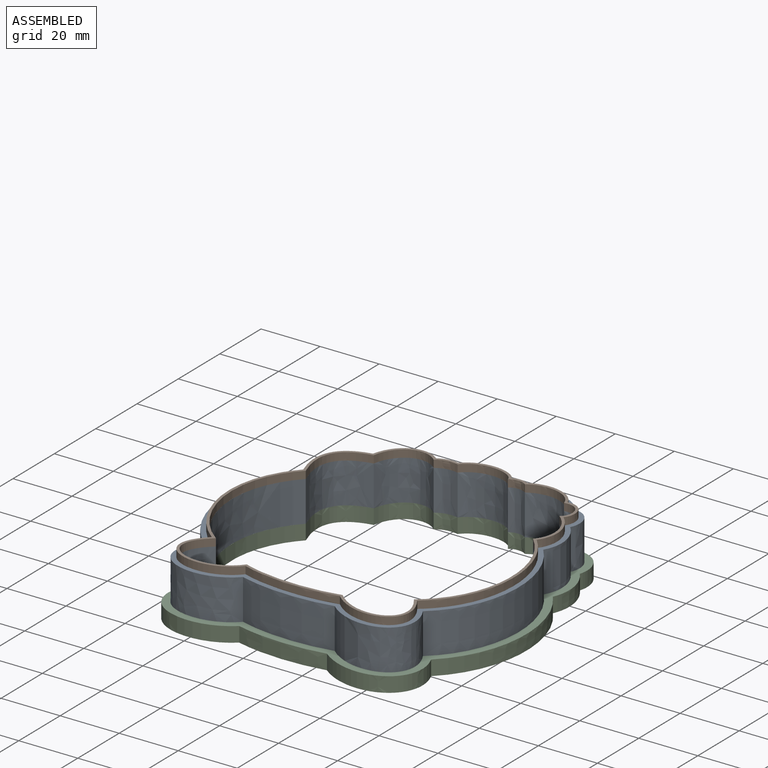
[diagram: assembled view]
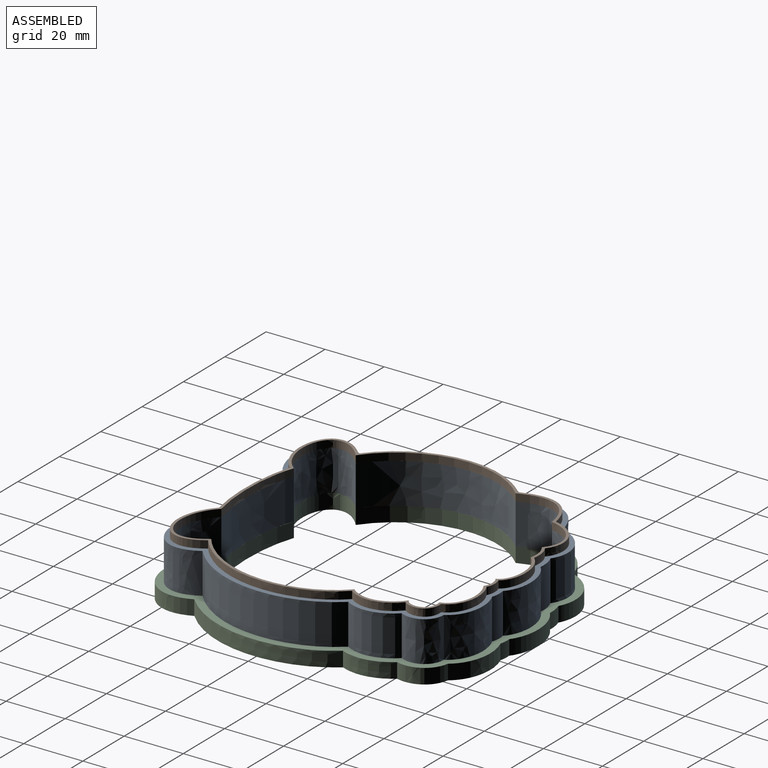
[diagram: assembled view, second angle]
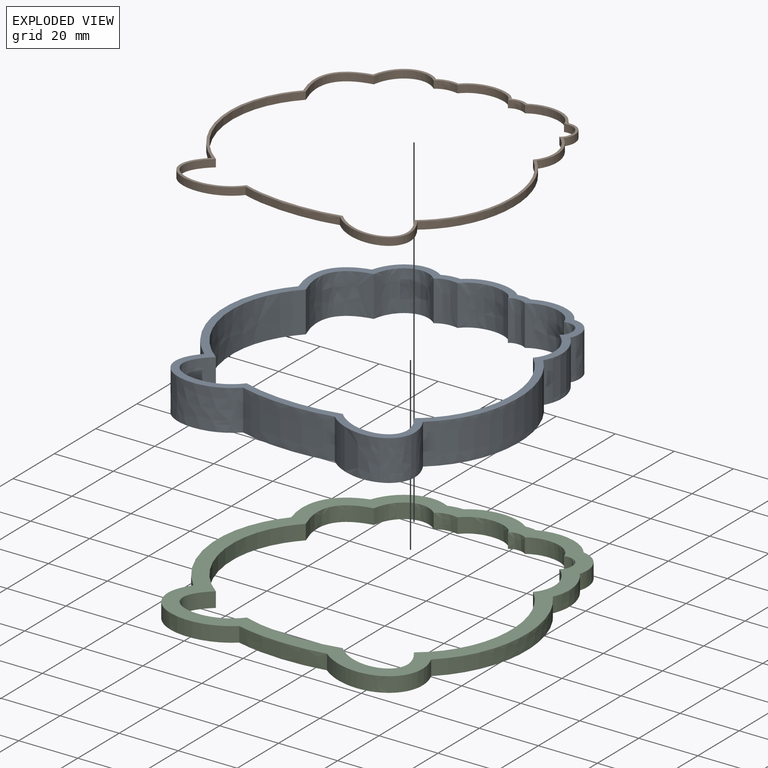
[diagram: exploded view]
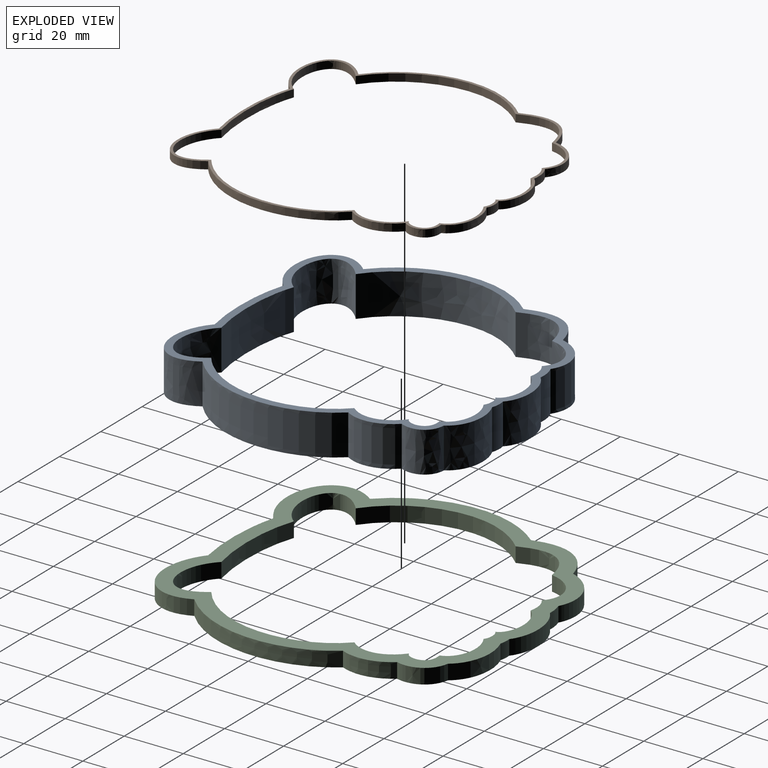
[diagram: exploded view, second angle]
ASSEMBLY  parts=3 mates=2
PART A: 28 faces, bbox 101.1x103.6x13.8 mm
  f0: plane 103.56x101.1mm, normal (0,0,1), area 901.9mm2, adj f2,f3,f4,f5,f6,f7,f8,f9
  f1: plane 103.56x101.1mm, normal (0,0,-1), area 901.9mm2, adj f2,f3,f4,f5,f6,f7,f8,f9
  f2: extruded ~51.39x13.72mm, area 786.8mm2, adj f0,f1,f3,f14
  f3: extruded ~25.49x17.3mm, area 562.3mm2, adj f0,f1,f2,f4
  f4: extruded ~31.78x13.72mm, area 440.3mm2, adj f0,f1,f3,f5
  f5: extruded ~24.18x16.36mm, area 521.4mm2, adj f0,f1,f4,f6
  f6: extruded ~52.26x13.72mm, area 796.4mm2, adj f0,f1,f5,f7
  f7: extruded ~16.46x13.72mm, area 245.2mm2, adj f0,f1,f6,f8
  f8: extruded ~13.72x10.24mm, area 193.6mm2, adj f0,f1,f7,f9
  f9: extruded ~17.56x13.72mm, area 270.4mm2, adj f0,f1,f8,f10
  f10: extruded ~13.72x4.75mm, area 66.3mm2, adj f0,f1,f9,f11
  f11: extruded ~18.93x13.72mm, area 282.6mm2, adj f0,f1,f10,f12
  f12: extruded ~13.72x6.1mm, area 85.8mm2, adj f0,f1,f11,f13
  f13: extruded ~17.56x13.72mm, area 311.8mm2, adj f0,f1,f12,f14
  f14: extruded ~20.68x13.72mm, area 371.5mm2, adj f0,f1,f2,f13
  f15: extruded ~50.63x14.26mm, area 790.9mm2, adj f0,f1,f16,f27
  f16: extruded ~22.15x14.93mm, area 512.8mm2, adj f0,f1,f15,f17
  f17: extruded ~33.36x13.72mm, area 463.4mm2, adj f0,f1,f16,f18
  f18: extruded ~20.87x14.37mm, area 470.6mm2, adj f0,f1,f17,f19
  f19: extruded ~51.48x13.72mm, area 799.7mm2, adj f0,f1,f18,f20
  f20: extruded ~16.54x13.72mm, area 258.6mm2, adj f0,f1,f19,f21
  f21: extruded ~13.72x7.84mm, area 170.9mm2, adj f0,f1,f20,f22
  f22: extruded ~15.9x13.72mm, area 255.7mm2, adj f0,f1,f21,f23
  f23: extruded ~13.72x5.74mm, area 84mm2, adj f0,f1,f22,f24
  f24: extruded ~17.05x13.72mm, area 268.1mm2, adj f0,f1,f23,f25
  f25: extruded ~13.72x7.21mm, area 103.7mm2, adj f0,f1,f24,f26
  f26: extruded ~15.24x13.72mm, area 288.2mm2, adj f0,f1,f25,f27
  f27: extruded ~19.1x13.72mm, area 355.5mm2, adj f0,f1,f15,f26
PART B: 28 faces, bbox 100.4x101.9x2.6 mm
  f0: plane 101.92x100.45mm, normal (0,0,1), area 313.2mm2, adj f2,f3,f4,f5,f6,f7,f8,f9
  f1: plane 101.92x100.45mm, normal (0,0,-1), area 313.2mm2, adj f2,f3,f4,f5,f6,f7,f8,f9
  f2: extruded ~50.9x13.74mm, area 146.1mm2, adj f0,f1,f3,f14
  f3: extruded ~23.34x15.76mm, area 98.1mm2, adj f0,f1,f2,f4
  f4: extruded ~32.78x2.67mm, area 84.2mm2, adj f0,f1,f3,f5
  f5: extruded ~22.03x15.07mm, area 90.4mm2, adj f0,f1,f4,f6
  f6: extruded ~51.73x13.28mm, area 147.7mm2, adj f0,f1,f5,f7
  f7: extruded ~16.42x4.66mm, area 46.5mm2, adj f0,f1,f6,f8
  f8: extruded ~8.79x5.98mm, area 32.9mm2, adj f0,f1,f7,f9
  f9: extruded ~16.49x5.59mm, area 48.1mm2, adj f0,f1,f8,f10
  f10: extruded ~5.37x2.54mm, area 14.1mm2, adj f0,f1,f9,f11
  f11: extruded ~17.78x3.75mm, area 50.3mm2, adj f0,f1,f10,f12
  f12: extruded ~6.82x2.54mm, area 18mm2, adj f0,f1,f11,f13
  f13: extruded ~16.07x9.68mm, area 54.8mm2, adj f0,f1,f12,f14
  f14: extruded ~19.66x11.61mm, area 66.8mm2, adj f0,f1,f2,f13
  f15: extruded ~50.63x14.26mm, area 146.5mm2, adj f0,f1,f16,f27
  f16: extruded ~22.15x14.93mm, area 95mm2, adj f0,f1,f15,f17
  f17: extruded ~33.36x2.83mm, area 85.8mm2, adj f0,f1,f16,f18
  f18: extruded ~20.87x14.37mm, area 87.2mm2, adj f0,f1,f17,f19
  f19: extruded ~51.48x13.63mm, area 148.1mm2, adj f0,f1,f18,f20
  f20: extruded ~16.54x5.2mm, area 47.9mm2, adj f0,f1,f19,f21
  f21: extruded ~7.84x5.71mm, area 31.6mm2, adj f0,f1,f20,f22
  f22: extruded ~15.9x5.67mm, area 47.4mm2, adj f0,f1,f21,f23
  f23: extruded ~5.74x2.54mm, area 15.6mm2, adj f0,f1,f22,f24
  f24: extruded ~17.05x3.82mm, area 49.7mm2, adj f0,f1,f23,f25
  f25: extruded ~7.21x2.54mm, area 19.2mm2, adj f0,f1,f24,f26
  f26: extruded ~15.24x9.56mm, area 53.4mm2, adj f0,f1,f25,f27
  f27: extruded ~19.1x11.48mm, area 65.8mm2, adj f0,f1,f15,f26
PART C: 28 faces, bbox 106.3x108.2x5.3 mm
  f0: plane 108.15x106.32mm, normal (0,0,1), area 1830.6mm2, adj f2,f3,f4,f5,f6,f7,f8,f9
  f1: plane 108.15x106.32mm, normal (0,0,-1), area 1830.6mm2, adj f2,f3,f4,f5,f6,f7,f8,f9
  f2: extruded ~52.18x11.97mm, area 291.7mm2, adj f0,f1,f3,f14
  f3: extruded ~28.72x19.62mm, area 227.7mm2, adj f0,f1,f2,f4
  f4: extruded ~30.39x5.08mm, area 155.7mm2, adj f0,f1,f3,f5
  f5: extruded ~27.42x18.33mm, area 212.3mm2, adj f0,f1,f4,f6
  f6: extruded ~53.17x12.09mm, area 296.1mm2, adj f0,f1,f5,f7
  f7: extruded ~16.6x5.08mm, area 89.7mm2, adj f0,f1,f6,f8
  f8: extruded ~12.14x7.67mm, area 81.5mm2, adj f0,f1,f7,f9
  f9: extruded ~19.2x5.72mm, area 107.4mm2, adj f0,f1,f8,f10
  f10: extruded ~5.08x3.81mm, area 19.5mm2, adj f0,f1,f9,f11
  f11: extruded ~20.58x5.08mm, area 111.8mm2, adj f0,f1,f10,f12
  f12: extruded ~5.08x5.03mm, area 26mm2, adj f0,f1,f11,f13
  f13: extruded ~19.77x10.36mm, area 125.2mm2, adj f0,f1,f12,f14
  f14: extruded ~22.22x12.44mm, area 144.3mm2, adj f0,f1,f2,f13
  f15: extruded ~50.63x14.26mm, area 292.9mm2, adj f0,f1,f16,f27
  f16: extruded ~22.15x14.93mm, area 189.9mm2, adj f0,f1,f15,f17
  f17: extruded ~33.36x5.08mm, area 171.6mm2, adj f0,f1,f16,f18
  f18: extruded ~20.87x14.37mm, area 174.3mm2, adj f0,f1,f17,f19
  f19: extruded ~51.48x13.63mm, area 296.2mm2, adj f0,f1,f18,f20
  f20: extruded ~16.54x5.2mm, area 95.8mm2, adj f0,f1,f19,f21
  f21: extruded ~7.84x5.71mm, area 63.3mm2, adj f0,f1,f20,f22
  f22: extruded ~15.9x5.67mm, area 94.7mm2, adj f0,f1,f21,f23
  f23: extruded ~5.74x5.08mm, area 31.1mm2, adj f0,f1,f22,f24
  f24: extruded ~17.05x5.08mm, area 99.3mm2, adj f0,f1,f23,f25
  f25: extruded ~7.21x5.08mm, area 38.4mm2, adj f0,f1,f24,f26
  f26: extruded ~15.24x9.56mm, area 106.7mm2, adj f0,f1,f25,f27
  f27: extruded ~19.1x11.48mm, area 131.7mm2, adj f0,f1,f15,f26
PLACE A t=(219.32,4.37,5.08)mm
PLACE B t=(105.47,6.68,18.8)mm
PLACE C at identity
MATE fastened B.f1 <-> A.f0  axis (0,0,1) through (62.02,15.98,18.8)mm
MATE fastened A.f1 <-> C.f0  axis (0,0,1) through (62.02,15.98,5.08)mm
